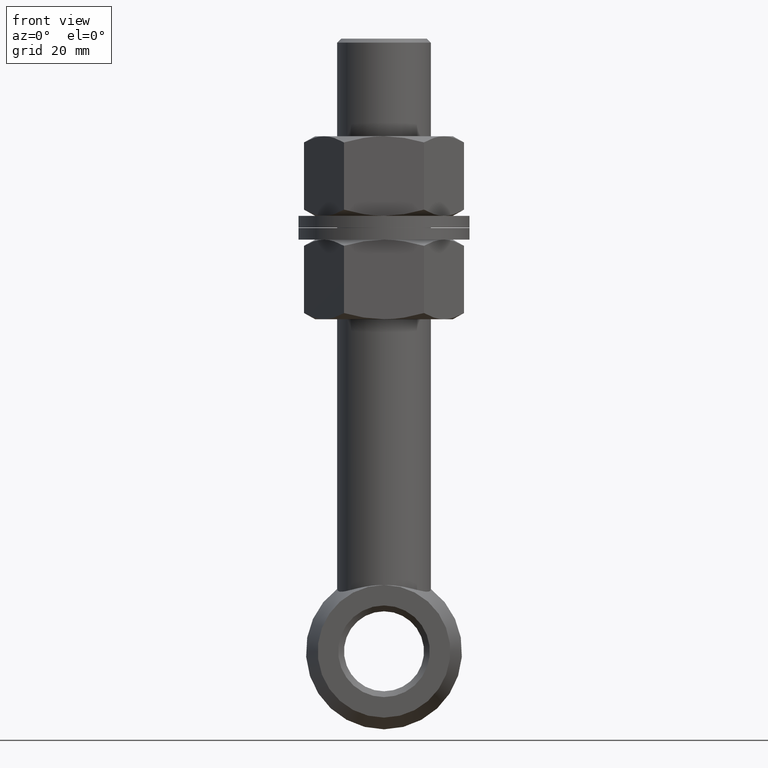
[diagram: clean part render]
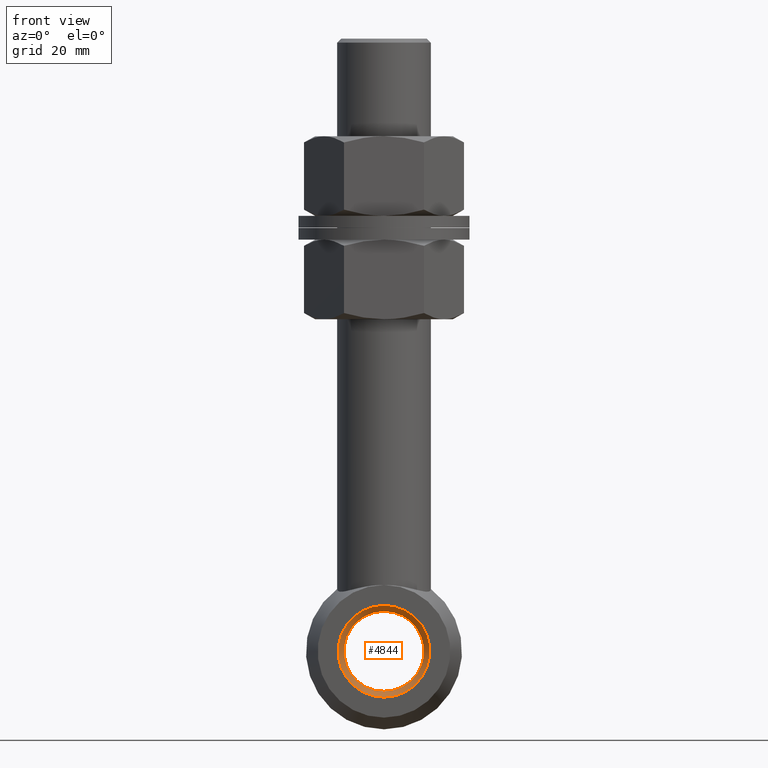
[diagram: same view with one face highlighted and labeled with its STEP entity id]
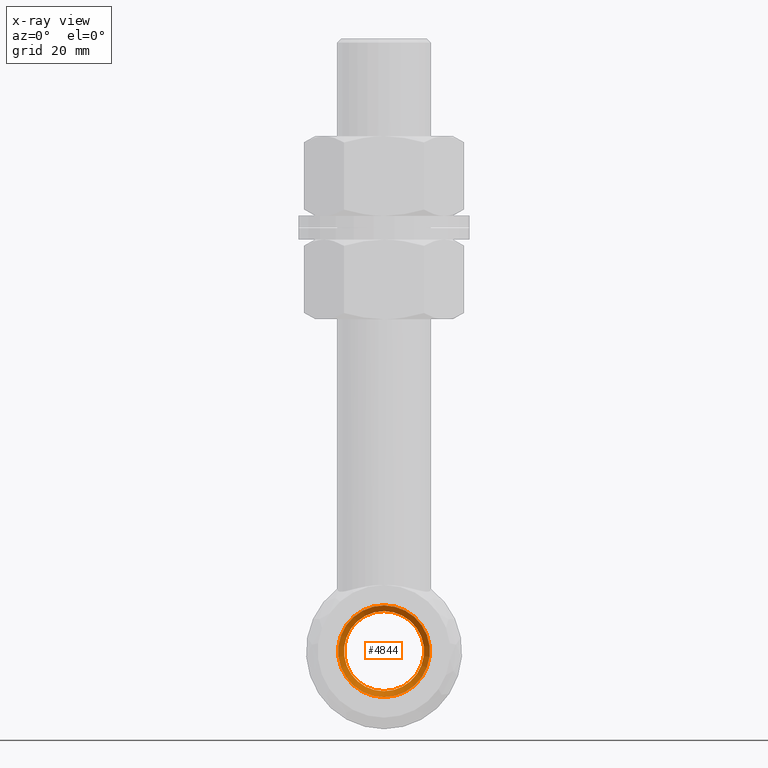
[diagram: x-ray of the same camera — body ghosted, the highlighted face saturated]
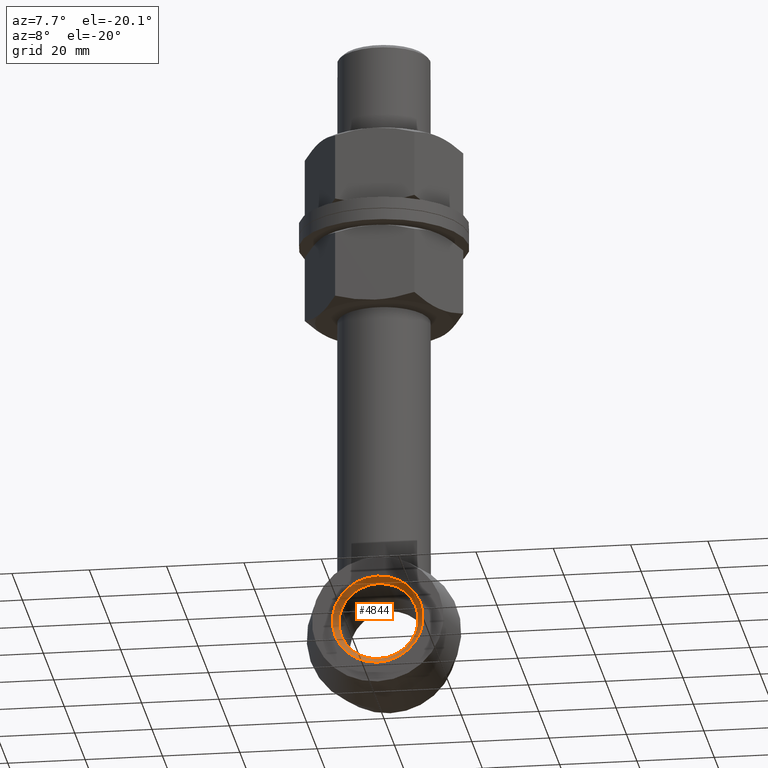
[diagram: same view with one face highlighted and labeled with its STEP entity id]
A machine part, front view. The second image highlights one B-rep face of the part: STEP entity #4844.
The next image is the same camera in x-ray: the body ghosted, the highlighted face saturated — about 0% of this face is hidden behind the body in this view.
A second angle (auxiliary view) of the same face is appended — the face is thin or edge-on in the first view.
In plain terms, the highlighted conical surface has half-angle 45 deg.
Its self-contained STEP definition (entity closure, byte-faithful):
#385 = AXIS2_PLACEMENT_3D ( 'NONE', #768, #2753, #1803 ) ;
#514 = CARTESIAN_POINT ( 'NONE',  ( 0.000000000000000000, -10.50000000000002309, -68.25000000000000000 ) ) ;
#568 = DIRECTION ( 'NONE',  ( 0.000000000000000000, 1.000000000000000000, 0.000000000000000000 ) ) ;
#768 = CARTESIAN_POINT ( 'NONE',  ( 0.000000000000000000, -12.00000000000000000, -78.50000000000000000 ) ) ;
#925 = CONICAL_SURFACE ( 'NONE', #385, 11.74999999999999645, 0.7853981633974552734 ) ;
#1377 = VERTEX_POINT ( 'NONE', #514 ) ;
#1497 = DIRECTION ( 'NONE',  ( 0.000000000000000000, 0.000000000000000000, 1.000000000000000000 ) ) ;
#1621 = EDGE_CURVE ( 'NONE', #1895, #1895, #6146, .T. ) ;
#1803 = DIRECTION ( 'NONE',  ( 0.000000000000000000, 0.000000000000000000, -1.000000000000000000 ) ) ;
#1895 = VERTEX_POINT ( 'NONE', #2531 ) ;
#2282 = AXIS2_PLACEMENT_3D ( 'NONE', #4949, #568, #4926 ) ;
#2311 = ORIENTED_EDGE ( 'NONE', *, *, #6329, .F. ) ;
#2320 = EDGE_LOOP ( 'NONE', ( #2311 ) ) ;
#2531 = CARTESIAN_POINT ( 'NONE',  ( 0.000000000000000000, -12.00000000000000000, -66.75000000000000000 ) ) ;
#2753 = DIRECTION ( 'NONE',  ( -0.000000000000000000, -1.000000000000000000, -0.000000000000000000 ) ) ;
#3407 = DIRECTION ( 'NONE',  ( -0.000000000000000000, -1.000000000000000000, -0.000000000000000000 ) ) ;
#3513 = FACE_OUTER_BOUND ( 'NONE', #5905, .T. ) ;
#4620 = CIRCLE ( 'NONE', #4796, 10.24999999999999467 ) ;
#4761 = ORIENTED_EDGE ( 'NONE', *, *, #1621, .F. ) ;
#4796 = AXIS2_PLACEMENT_3D ( 'NONE', #4939, #3407, #1497 ) ;
#4844 = ADVANCED_FACE ( 'NONE', ( #4886, #3513 ), #925, .F. ) ;
#4886 = FACE_BOUND ( 'NONE', #2320, .T. ) ;
#4926 = DIRECTION ( 'NONE',  ( 0.000000000000000000, 0.000000000000000000, 1.000000000000000000 ) ) ;
#4939 = CARTESIAN_POINT ( 'NONE',  ( 0.000000000000000000, -10.50000000000002309, -78.50000000000000000 ) ) ;
#4949 = CARTESIAN_POINT ( 'NONE',  ( 0.000000000000000000, -12.00000000000000000, -78.50000000000000000 ) ) ;
#5905 = EDGE_LOOP ( 'NONE', ( #4761 ) ) ;
#6146 = CIRCLE ( 'NONE', #2282, 11.74999999999999645 ) ;
#6329 = EDGE_CURVE ( 'NONE', #1377, #1377, #4620, .T. ) ;